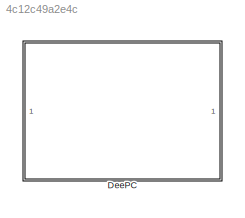
MODEL slx_4c12c49a2e4c
KIND library
CONFIG AbsTol = auto
CONFIG EnableMultiTasking = off
CONFIG FixedStep = auto
CONFIG MaxStep = auto
CONFIG MinStep = auto
CONFIG RelTol = 1e-3
CONFIG SampleTimeConstraint = Unconstrained
CONFIG SolverName = VariableStepAuto
CONFIG StartTime = 0.0
CONFIG StopTime = 10.0
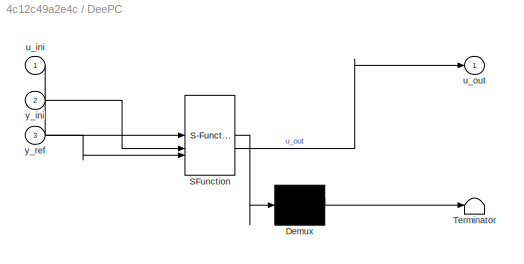
BLOCK [SubSystem] DeePC
  ErrorFcn = Stateflow.Translate.translate
  PermitHierarchicalResolution = ExplicitOnly
  SFBlockType = MATLAB Function
  TreatAsAtomicUnit = on
BLOCK [Demux] DeePC/ Demux 
  Outputs = 1
BLOCK [S-Function] DeePC/ SFunction 
  EnableBusSupport = on
  FunctionName = sf_sfun
  Parameters = Uf,Up,Yf,Yp,lambda,q,r,u_limit
  PortCounts = [3 2]
  SFcnIsStateOwnerBlock = off
  SFunctionDeploymentMode = off
  Tag = Stateflow S-Function 2
BLOCK [Terminator] DeePC/ Terminator 
BLOCK [Inport] DeePC/u_ini
BLOCK [Outport] DeePC/u_out
BLOCK [Inport] DeePC/y_ini
  Port = 2
BLOCK [Inport] DeePC/y_ref
  Port = 3
CHART DeePC states=1 transitions=1
  STATE_LABEL 'eML_blk_kernel()'
  STATE_LABEL 'SCRIPT:\nfunction u_out = deepc_controller(u_ini, y_ini, y_ref, Up, Yp, Uf, Yf, q, r, lambda, u_limit)\n\n    % u_ini: [Tini*m x 1] \n    % y_ini: [Tini*p x 1]\n    % y_ref: [N*p x 1]\n    % Up, Uf, Yp, Yf: Pre-partitioned Hankel matrices from offline data\n\n    % --- Persistent Variables for Speed ---\n    persistent G_mat x0_warm first_run m p N Tini u_prev u_f_sol Q R du_max du_min A_cons I_vec S\n    \n...<+3608ch>'
CHART  states=0 transitions=0
